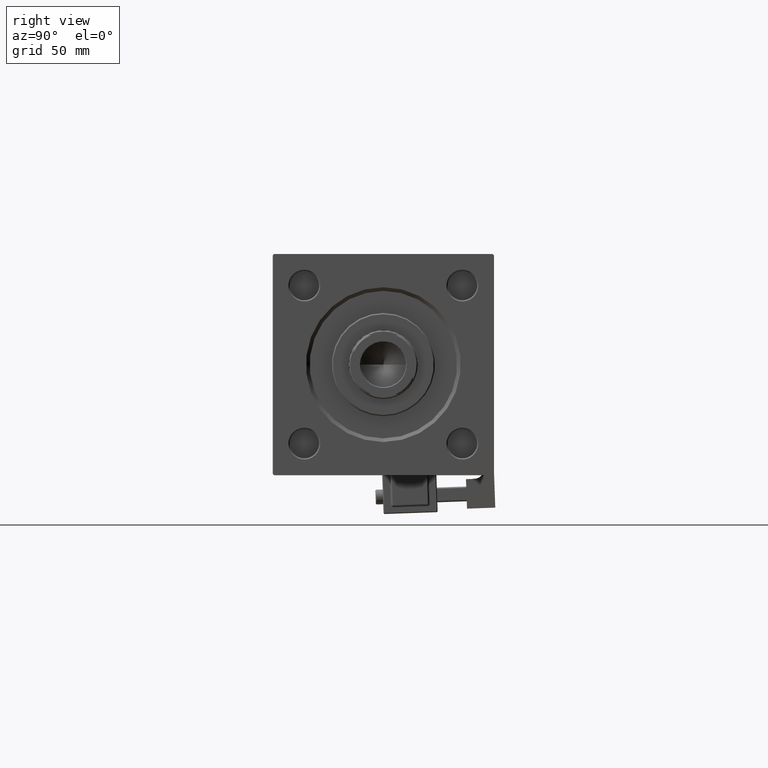
[diagram: clean part render]
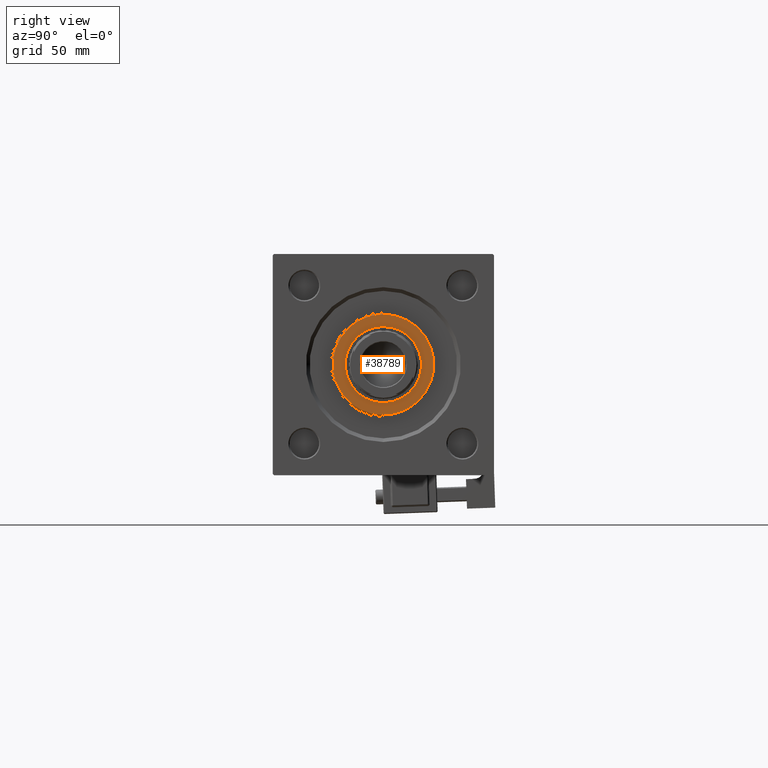
[diagram: same view with one face highlighted and labeled with its STEP entity id]
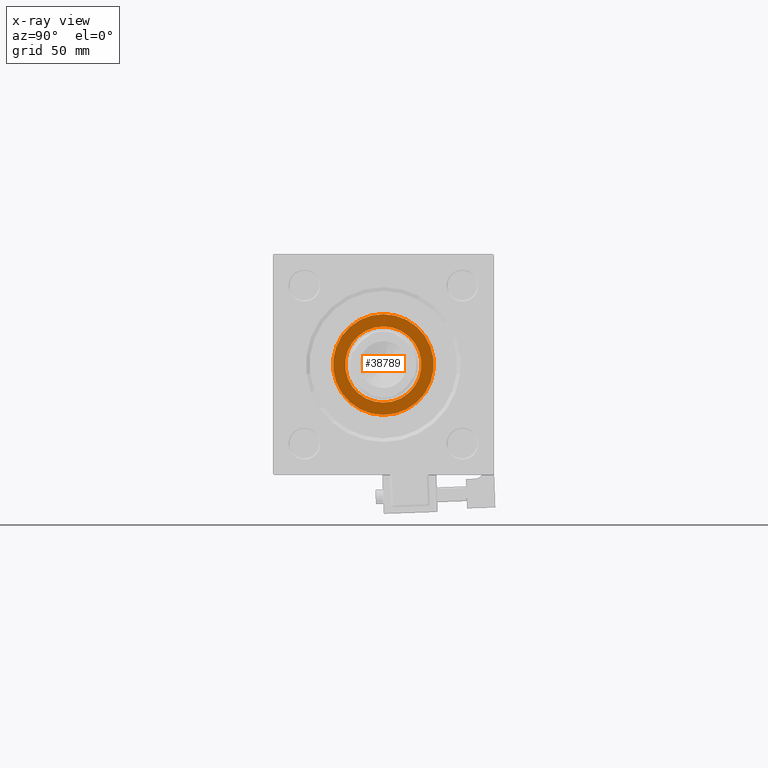
[diagram: x-ray of the same camera — body ghosted, the highlighted face saturated]
A machine part, right view. The second image highlights one B-rep face of the part: STEP entity #38789.
The next image is the same camera in x-ray: the body ghosted, the highlighted face saturated — about 0% of this face is hidden behind the body in this view.
In plain terms, the highlighted planar face has unit normal (1, 0, 0).
Its self-contained STEP definition (entity closure, byte-faithful):
#1343 = CARTESIAN_POINT ( 'NONE',  ( 0.000000000000000000, 0.000000000000000000, 39.69999999999999574 ) ) ;
#2881 = CIRCLE ( 'NONE', #41791, 15.50000000000000000 ) ;
#4044 = DIRECTION ( 'NONE',  ( 0.000000000000000000, 0.000000000000000000, 1.000000000000000000 ) ) ;
#8774 = CIRCLE ( 'NONE', #13094, 20.50000000000000355 ) ;
#9043 = CARTESIAN_POINT ( 'NONE',  ( -20.50000000000000355, 0.000000000000000000, 39.69999999999999574 ) ) ;
#9384 = EDGE_LOOP ( 'NONE', ( #13808, #39827 ) ) ;
#10899 = EDGE_CURVE ( 'NONE', #31014, #49509, #14610, .T. ) ;
#13040 = DIRECTION ( 'NONE',  ( 0.000000000000000000, 0.000000000000000000, 1.000000000000000000 ) ) ;
#13094 = AXIS2_PLACEMENT_3D ( 'NONE', #37218, #36693, #52705 ) ;
#13788 = DIRECTION ( 'NONE',  ( 0.000000000000000000, 0.000000000000000000, 1.000000000000000000 ) ) ;
#13808 = ORIENTED_EDGE ( 'NONE', *, *, #22243, .T. ) ;
#14610 = CIRCLE ( 'NONE', #15491, 15.50000000000000000 ) ;
#15491 = AXIS2_PLACEMENT_3D ( 'NONE', #48752, #4044, #49261 ) ;
#15514 = CARTESIAN_POINT ( 'NONE',  ( 0.000000000000000000, 0.000000000000000000, 39.69999999999999574 ) ) ;
#16031 = FACE_BOUND ( 'NONE', #27282, .T. ) ;
#16296 = DIRECTION ( 'NONE',  ( 1.000000000000000000, 0.000000000000000000, 0.000000000000000000 ) ) ;
#16836 = CARTESIAN_POINT ( 'NONE',  ( 0.000000000000000000, 0.000000000000000000, 39.69999999999999574 ) ) ;
#22243 = EDGE_CURVE ( 'NONE', #34543, #45713, #29490, .T. ) ;
#22746 = EDGE_CURVE ( 'NONE', #45713, #34543, #8774, .T. ) ;
#23511 = CARTESIAN_POINT ( 'NONE',  ( -15.50000000000000000, 1.898202538678397557E-15, 39.69999999999999574 ) ) ;
#24436 = DIRECTION ( 'NONE',  ( 1.000000000000000000, 0.000000000000000000, -0.000000000000000000 ) ) ;
#26896 = ORIENTED_EDGE ( 'NONE', *, *, #10899, .F. ) ;
#27282 = EDGE_LOOP ( 'NONE', ( #26896, #42402 ) ) ;
#28200 = CARTESIAN_POINT ( 'NONE',  ( 20.50000000000000355, 2.541142108230758269E-15, 39.69999999999999574 ) ) ;
#29490 = CIRCLE ( 'NONE', #39023, 20.50000000000000355 ) ;
#31014 = VERTEX_POINT ( 'NONE', #52973 ) ;
#34543 = VERTEX_POINT ( 'NONE', #9043 ) ;
#36693 = DIRECTION ( 'NONE',  ( 0.000000000000000000, 0.000000000000000000, 1.000000000000000000 ) ) ;
#37218 = CARTESIAN_POINT ( 'NONE',  ( 0.000000000000000000, 0.000000000000000000, 39.69999999999999574 ) ) ;
#37354 = DIRECTION ( 'NONE',  ( 1.000000000000000000, 0.000000000000000000, 0.000000000000000000 ) ) ;
#38789 = ADVANCED_FACE ( 'NONE', ( #16031, #52627 ), #40428, .T. ) ;
#39023 = AXIS2_PLACEMENT_3D ( 'NONE', #16836, #13040, #16296 ) ;
#39827 = ORIENTED_EDGE ( 'NONE', *, *, #22746, .T. ) ;
#40428 = PLANE ( 'NONE',  #50023 ) ;
#41791 = AXIS2_PLACEMENT_3D ( 'NONE', #1343, #13788, #37354 ) ;
#42402 = ORIENTED_EDGE ( 'NONE', *, *, #51638, .F. ) ;
#45001 = DIRECTION ( 'NONE',  ( 0.000000000000000000, 0.000000000000000000, 1.000000000000000000 ) ) ;
#45713 = VERTEX_POINT ( 'NONE', #28200 ) ;
#48752 = CARTESIAN_POINT ( 'NONE',  ( 0.000000000000000000, 0.000000000000000000, 39.69999999999999574 ) ) ;
#49261 = DIRECTION ( 'NONE',  ( 1.000000000000000000, 0.000000000000000000, 0.000000000000000000 ) ) ;
#49509 = VERTEX_POINT ( 'NONE', #23511 ) ;
#50023 = AXIS2_PLACEMENT_3D ( 'NONE', #15514, #45001, #24436 ) ;
#51638 = EDGE_CURVE ( 'NONE', #49509, #31014, #2881, .T. ) ;
#52627 = FACE_OUTER_BOUND ( 'NONE', #9384, .T. ) ;
#52705 = DIRECTION ( 'NONE',  ( 1.000000000000000000, 0.000000000000000000, 0.000000000000000000 ) ) ;
#52973 = CARTESIAN_POINT ( 'NONE',  ( 15.50000000000000000, 0.000000000000000000, 39.69999999999999574 ) ) ;